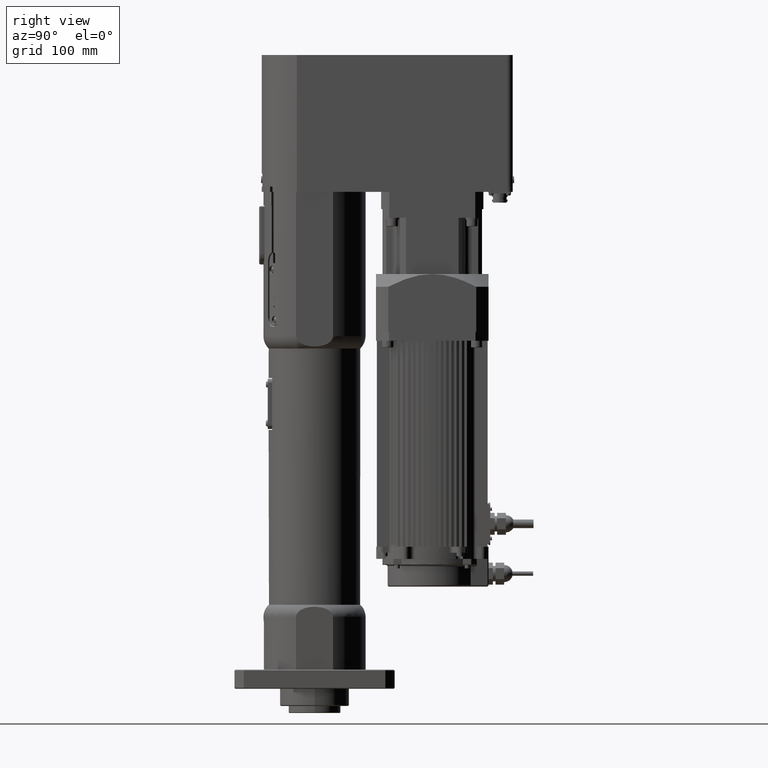
[diagram: clean part render]
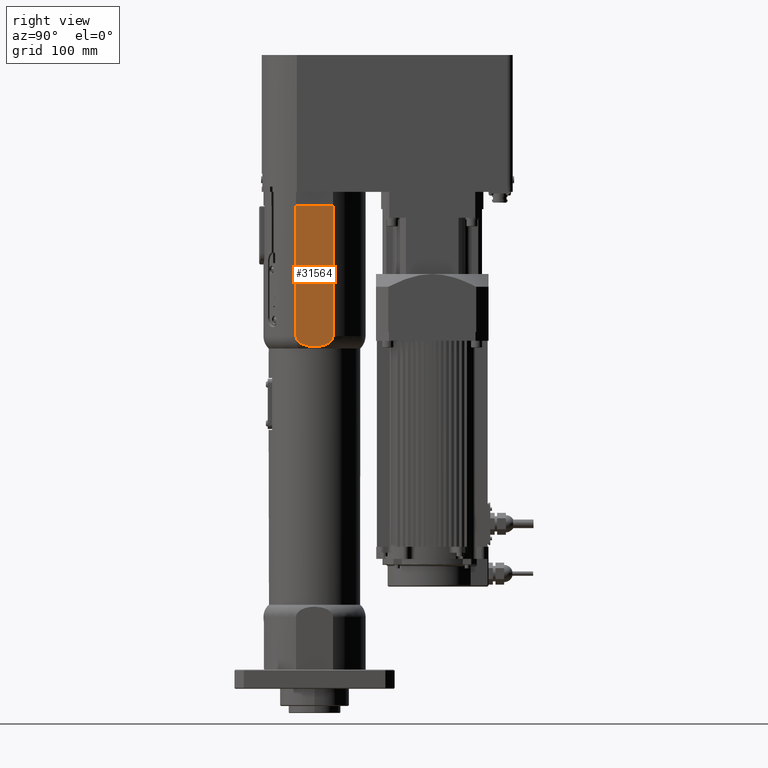
[diagram: same view with one face highlighted and labeled with its STEP entity id]
A machine part, right view. The second image highlights one B-rep face of the part: STEP entity #31564.
In plain terms, the highlighted planar face has unit normal (1, -0, 0).
Its self-contained STEP definition (entity closure, byte-faithful):
#2969=LINE('',#48934,#5363);
#3223=LINE('',#50274,#5617);
#3228=LINE('',#50308,#5622);
#5363=VECTOR('',#38710,10.);
#5617=VECTOR('',#39836,10.);
#5622=VECTOR('',#39845,10.);
#7529=PLANE('',#34150);
#8825=FACE_OUTER_BOUND('',#10654,.T.);
#10654=EDGE_LOOP('',(#24831,#24832,#24833,#24834,#24835));
#13636=B_SPLINE_CURVE_WITH_KNOTS('',3,(#50226,#50227,#50228,#50229,#50230,
#50231,#50232,#50233,#50234,#50235,#50236,#50237,#50238,#50239,#50240,#50241,
#50242,#50243,#50244,#50245,#50246,#50247,#50248,#50249,#50250,#50251,#50252,
#50253,#50254,#50255,#50256,#50257,#50258,#50259,#50260),.UNSPECIFIED.,
 .F.,.F.,(4,2,2,2,2,2,2,2,3,2,2,2,2,2,2,2,4),(-2.53659667653228,-2.40853899549968,
-2.28048131446707,-2.12513834180721,-1.96979536914736,-1.73820945368025,
-1.50662353821315,-0.753311769106574,0.,0.753311769106574,1.50662353821315,
1.73820945368025,1.96979536914736,2.12513834180721,2.28048131446707,2.40853899549968,
2.42791438277444),.UNSPECIFIED.);
#13637=B_SPLINE_CURVE_WITH_KNOTS('',3,(#50267,#50268,#50269,#50270),
 .UNSPECIFIED.,.F.,.F.,(4,4),(2.42791438277444,2.53659667653228),
 .UNSPECIFIED.);
#14712=VERTEX_POINT('',#48927);
#14714=VERTEX_POINT('',#48933);
#15037=VERTEX_POINT('',#50223);
#15038=VERTEX_POINT('',#50225);
#15041=VERTEX_POINT('',#50266);
#18112=EDGE_CURVE('',#14712,#14714,#2969,.T.);
#18641=EDGE_CURVE('',#15037,#15038,#13636,.T.);
#18645=EDGE_CURVE('',#15038,#15041,#13637,.T.);
#18648=EDGE_CURVE('',#14714,#15037,#3223,.T.);
#18657=EDGE_CURVE('',#15041,#14712,#3228,.T.);
#24831=ORIENTED_EDGE('',*,*,#18112,.F.);
#24832=ORIENTED_EDGE('',*,*,#18657,.F.);
#24833=ORIENTED_EDGE('',*,*,#18645,.F.);
#24834=ORIENTED_EDGE('',*,*,#18641,.F.);
#24835=ORIENTED_EDGE('',*,*,#18648,.F.);
#31564=ADVANCED_FACE('',(#8825),#7529,.T.);
#34150=AXIS2_PLACEMENT_3D('',#50360,#39851,#39852);
#38710=DIRECTION('',(2.11696050750258E-12,1.,-5.62947358960356E-15));
#39836=DIRECTION('',(8.18928724299131E-16,-5.62947358965912E-15,-1.));
#39845=DIRECTION('',(-8.18928724299131E-16,5.62947358965912E-15,1.));
#39851=DIRECTION('center_axis',(1.,-2.05831338220809E-12,8.18928724310718E-16));
#39852=DIRECTION('ref_axis',(2.05831338220809E-12,1.,-5.62947358965743E-15));
#48927=CARTESIAN_POINT('',(55.0000000000667,-21.3541565041706,558.000000000006));
#48933=CARTESIAN_POINT('',(55.0000000001571,21.3541565039497,558.000000000005));
#48934=CARTESIAN_POINT('',(55.0000000000667,-21.3541565041706,558.000000000006));
#50223=CARTESIAN_POINT('',(55.0000000001545,21.3541565039368,407.282856857087));
#50225=CARTESIAN_POINT('',(55.0000000000668,-21.2636719793125,406.139835255434));
#50226=CARTESIAN_POINT('Ctrl Pts',(55.0000000001545,21.3541565039438,407.282856857087));
#50227=CARTESIAN_POINT('Ctrl Pts',(55.0000000001545,21.3541565039438,406.855997920312));
#50228=CARTESIAN_POINT('Ctrl Pts',(55.0000000001544,21.3136999108942,406.389574559727));
#50229=CARTESIAN_POINT('Ctrl Pts',(55.0000000001541,21.1414096501192,405.47351146499));
#50230=CARTESIAN_POINT('Ctrl Pts',(55.0000000001538,21.009857521746,405.0238188022));
#50231=CARTESIAN_POINT('Ctrl Pts',(55.0000000001531,20.6757006621933,404.140224765812));
#50232=CARTESIAN_POINT('Ctrl Pts',(55.0000000001526,20.4261579008082,403.630492325421));
#50233=CARTESIAN_POINT('Ctrl Pts',(55.0000000001514,19.8338031189689,402.666837918288));
#50234=CARTESIAN_POINT('Ctrl Pts',(55.0000000001507,19.4917548973936,402.2124466557));
#50235=CARTESIAN_POINT('Ctrl Pts',(55.0000000001489,18.6489328373622,401.236158035872));
#50236=CARTESIAN_POINT('Ctrl Pts',(55.0000000001477,18.0350696031504,400.654694127497));
#50237=CARTESIAN_POINT('Ctrl Pts',(55.0000000001449,16.7094116707578,399.611597018913));
#50238=CARTESIAN_POINT('Ctrl Pts',(55.0000000001435,15.9986958765463,399.148593383429));
#50239=CARTESIAN_POINT('Ctrl Pts',(55.0000000001376,13.1470194857735,397.521946499375));
#50240=CARTESIAN_POINT('Ctrl Pts',(55.0000000001323,10.5733002696678,396.637841368523));
#50241=CARTESIAN_POINT('Ctrl Pts',(55.0000000001214,5.25537698798471,395.517979066386));
#50242=CARTESIAN_POINT('Ctrl Pts',(55.0000000001157,2.51103923023286,395.282856857085));
#50243=CARTESIAN_POINT('Ctrl Pts',(55.0000000001106,-1.22389208043686E-10,
395.282856857085));
#50244=CARTESIAN_POINT('Ctrl Pts',(55.0000000001054,-2.51103923047764,395.282856857085));
#50245=CARTESIAN_POINT('Ctrl Pts',(55.0000000000997,-5.25537698822949,395.517979066386));
#50246=CARTESIAN_POINT('Ctrl Pts',(55.0000000000888,-10.5733002699126,396.637841368523));
#50247=CARTESIAN_POINT('Ctrl Pts',(55.0000000000835,-13.1470194860182,397.521946499375));
#50248=CARTESIAN_POINT('Ctrl Pts',(55.0000000000776,-15.998695876791,399.148593383429));
#50249=CARTESIAN_POINT('Ctrl Pts',(55.0000000000762,-16.7094116710025,399.611597018913));
#50250=CARTESIAN_POINT('Ctrl Pts',(55.0000000000734,-18.0350696033952,400.654694127497));
#50251=CARTESIAN_POINT('Ctrl Pts',(55.0000000000722,-18.6489328376069,401.236158035873));
#50252=CARTESIAN_POINT('Ctrl Pts',(55.0000000000704,-19.4917548976383,402.2124466557));
#50253=CARTESIAN_POINT('Ctrl Pts',(55.0000000000697,-19.8338031192135,402.666837918288));
#50254=CARTESIAN_POINT('Ctrl Pts',(55.0000000000685,-20.4261579010528,403.630492325421));
#50255=CARTESIAN_POINT('Ctrl Pts',(55.000000000068,-20.675700662438,404.140224765813));
#50256=CARTESIAN_POINT('Ctrl Pts',(55.0000000000673,-21.0098575219907,405.0238188022));
#50257=CARTESIAN_POINT('Ctrl Pts',(55.000000000067,-21.1414096503639,405.47351146499));
#50258=CARTESIAN_POINT('Ctrl Pts',(55.0000000000668,-21.240588713973,406.000844115914));
#50259=CARTESIAN_POINT('Ctrl Pts',(55.0000000000668,-21.2526378087544,406.070327738408));
#50260=CARTESIAN_POINT('Ctrl Pts',(55.0000000000668,-21.2636719793125,406.139835255433));
#50266=CARTESIAN_POINT('',(55.0000000000666,-21.3541565041884,407.282856857087));
#50267=CARTESIAN_POINT('Ctrl Pts',(55.0000000000668,-21.2636719793125,406.139835255433));
#50268=CARTESIAN_POINT('Ctrl Pts',(55.0000000000666,-21.3255659145907,406.529723533619));
#50269=CARTESIAN_POINT('Ctrl Pts',(55.0000000000666,-21.3541565041884,406.920582544561));
#50270=CARTESIAN_POINT('Ctrl Pts',(55.0000000000666,-21.3541565041884,407.282856857087));
#50274=CARTESIAN_POINT('',(55.0000000001545,21.3541565039367,393.));
#50308=CARTESIAN_POINT('',(55.0000000000666,-21.3541565041885,393.));
#50360=CARTESIAN_POINT('Origin',(55.0000000000669,-21.3541565041903,22.));